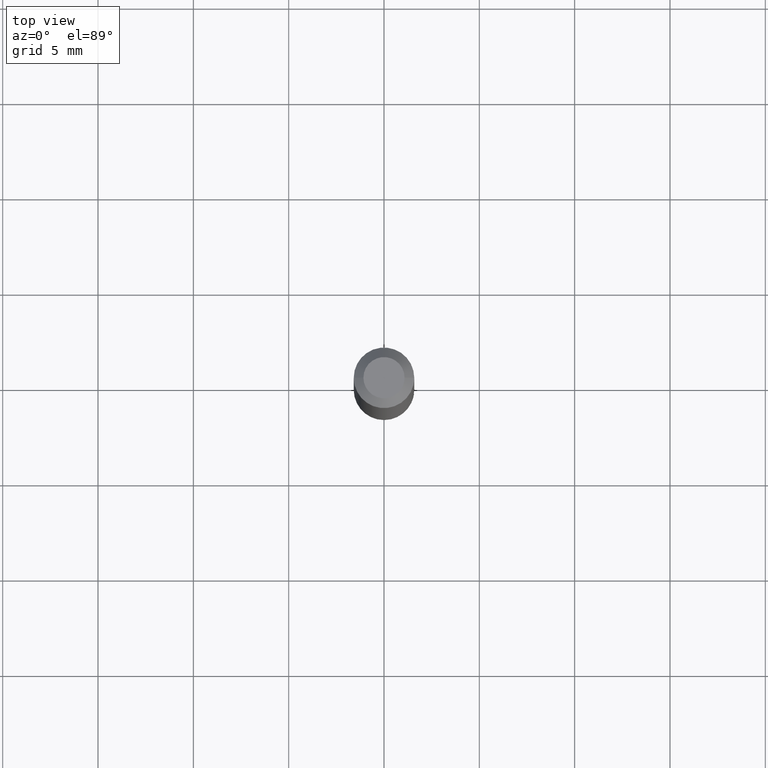
[diagram: clean part render]
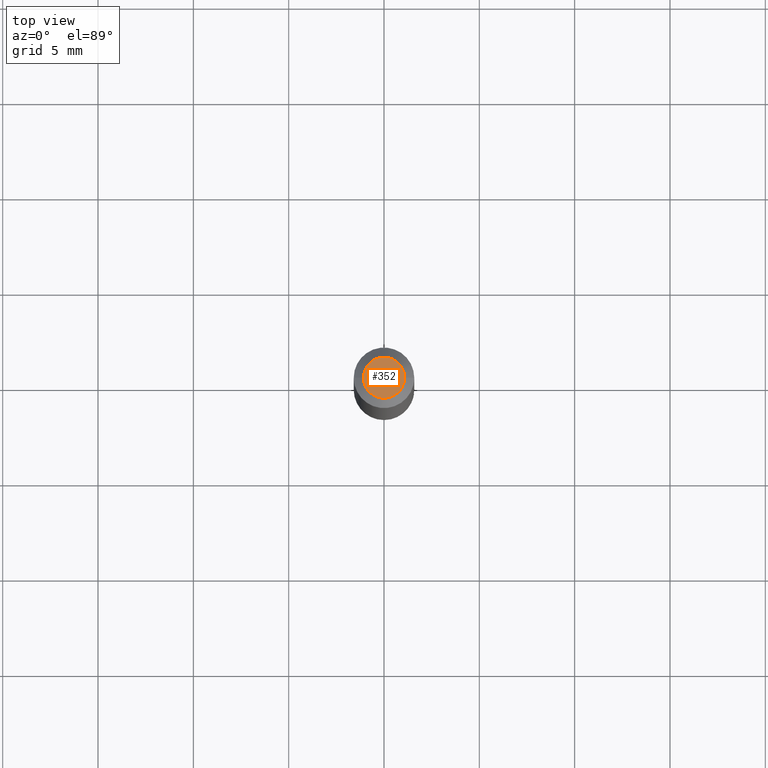
[diagram: same view with one face highlighted and labeled with its STEP entity id]
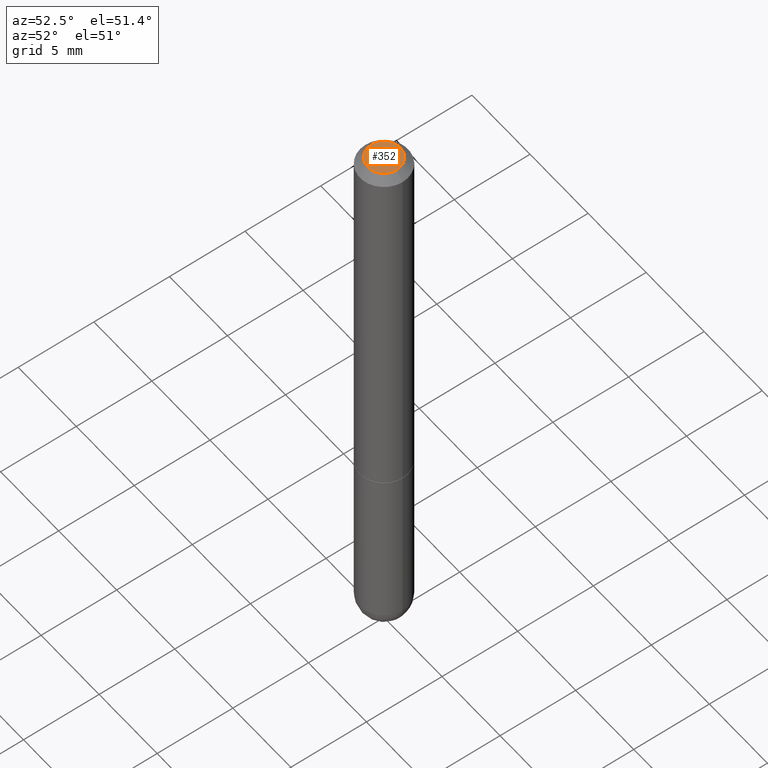
[diagram: same view with one face highlighted and labeled with its STEP entity id]
A machine part, top view. The second image highlights one B-rep face of the part: STEP entity #352.
A second angle (auxiliary view) of the same face is appended — the face is thin or edge-on in the first view.
In plain terms, the highlighted planar face has unit normal (0, -0, -1).
Its self-contained STEP definition (entity closure, byte-faithful):
#3 = FACE_OUTER_BOUND ( 'NONE', #340, .T. ) ;
#35 = DIRECTION ( 'NONE',  ( 1.000000000000000000, -6.982962677686266711E-15, 4.852736867747410488E-29 ) ) ;
#64 = DIRECTION ( 'NONE',  ( -1.000000000000000000, 6.982962677686265922E-15, -4.876176775795935793E-29 ) ) ;
#72 = DIRECTION ( 'NONE',  ( -2.445468806185136597E-29, 3.491481338843145583E-15, 1.000000000000000000 ) ) ;
#133 = PLANE ( 'NONE',  #183 ) ;
#145 = AXIS2_PLACEMENT_3D ( 'NONE', #222, #225, #195 ) ;
#162 = ORIENTED_EDGE ( 'NONE', *, *, #199, .T. ) ;
#165 = VERTEX_POINT ( 'NONE', #202 ) ;
#172 = CARTESIAN_POINT ( 'NONE',  ( -7.202574758913015802E-45, 1.028336787562508620E-30, 2.945273618169283567E-16 ) ) ;
#183 = AXIS2_PLACEMENT_3D ( 'NONE', #387, #353, #64 ) ;
#195 = DIRECTION ( 'NONE',  ( 1.000000000000000000, -6.982962677686266711E-15, 4.852736867747410488E-29 ) ) ;
#199 = EDGE_CURVE ( 'NONE', #165, #372, #254, .T. ) ;
#202 = CARTESIAN_POINT ( 'NONE',  ( 0.04249999999999961448, -3.950909582714350189E-16, 2.945273618169308219E-16 ) ) ;
#222 = CARTESIAN_POINT ( 'NONE',  ( -7.202574758913015802E-45, 1.028336787562508620E-30, 2.945273618169283567E-16 ) ) ;
#223 = ORIENTED_EDGE ( 'NONE', *, *, #332, .T. ) ;
#225 = DIRECTION ( 'NONE',  ( -2.445468806185136597E-29, 3.491481338843145583E-15, 1.000000000000000000 ) ) ;
#254 = CIRCLE ( 'NONE', #365, 0.04249999999999961448 ) ;
#268 = CIRCLE ( 'NONE', #145, 0.04249999999999961448 ) ;
#332 = EDGE_CURVE ( 'NONE', #372, #165, #268, .T. ) ;
#333 = CARTESIAN_POINT ( 'NONE',  ( -0.04249999999999961448, 3.316907271900964263E-16, 2.945273618169261873E-16 ) ) ;
#340 = EDGE_LOOP ( 'NONE', ( #223, #162 ) ) ;
#352 = ADVANCED_FACE ( 'NONE', ( #3 ), #133, .F. ) ;
#353 = DIRECTION ( 'NONE',  ( 2.438088387897960049E-29, -3.491481338843145188E-15, -1.000000000000000000 ) ) ;
#365 = AXIS2_PLACEMENT_3D ( 'NONE', #172, #72, #35 ) ;
#372 = VERTEX_POINT ( 'NONE', #333 ) ;
#387 = CARTESIAN_POINT ( 'NONE',  ( 2.967759138016636432E-16, 0.04249999999999961448, -1.124275992368138813E-18 ) ) ;